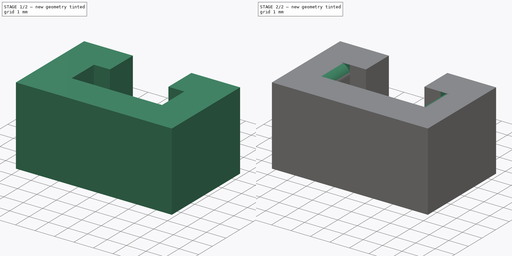
[diagram: build sequence overview — one tinted view per stage of 2, left to right]
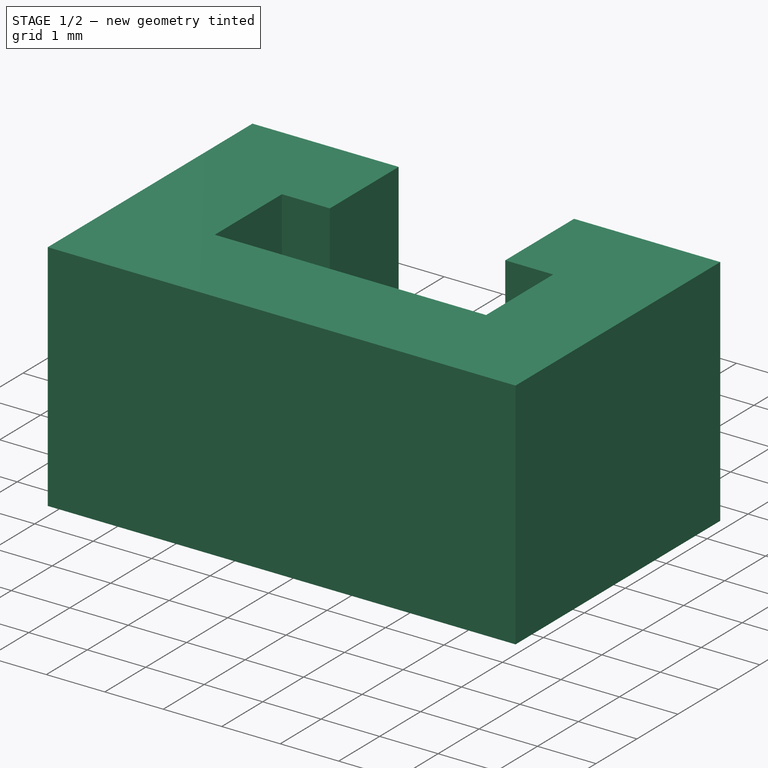
[diagram: stage 1 of 2 — iso view after this stage's code; geometry added in this stage tinted green]
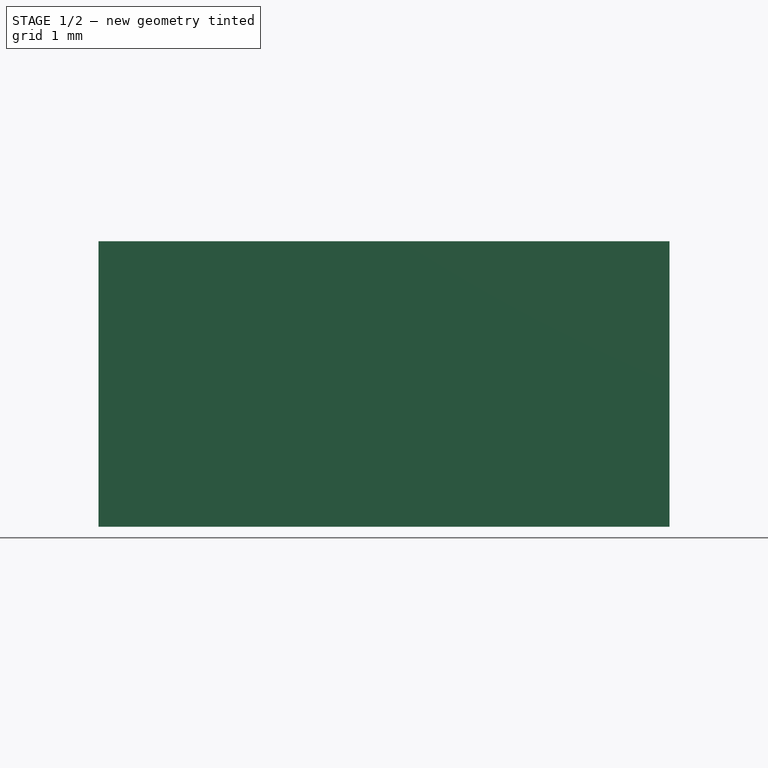
[diagram: stage 1 of 2 — front view after this stage's code; geometry added in this stage tinted green]
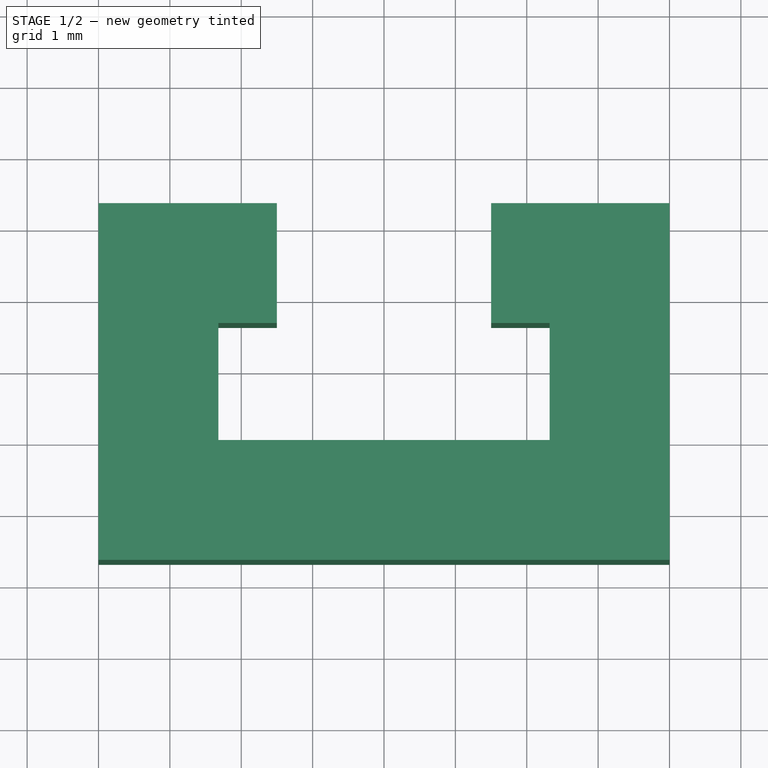
[diagram: stage 1 of 2 — top view after this stage's code; geometry added in this stage tinted green]
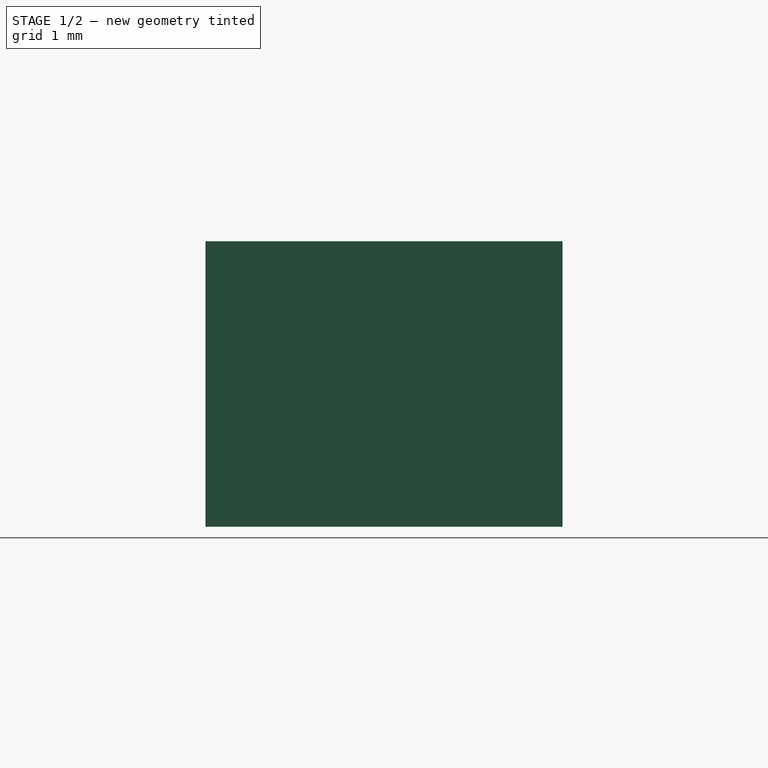
[diagram: stage 1 of 2 — right view after this stage's code; geometry added in this stage tinted green]
FCSTD DOCUMENT  (FreeCAD 1.0R39109 (Git))
Label: Rubber-Band-Clip
License: All rights reserved
LicenseURL: https://en.wikipedia.org/wiki/All_rights_reserved
objects: Sketcher::SketchObject×1, App::VarSet×1, PartDesign::Pad×1, PartDesign::Fillet×1, PartDesign::Body×1
note: 9 computed .brp shape members not serialized (recipe doc carries the construction recipe); baked Part::Feature solids carry a one-line shape summary decoded from their .brp

FEATURE [Sketcher::SketchObject] Sketch
  ArcFitTolerance = 1e-06
  AttachmentSupport = -> [XY_Plane]
  FullyConstrained = true
  MakeInternals = false
  MapMode = 5
  expr: Constraints[26] = VarSet.Base_Thickness
  expr: Constraints[29] = VarSet.Base_Thickness
  expr: Constraints[30] = VarSet.Base_Thickness
  expr: Constraints[31] = VarSet.Base_Thickness
  sketch-geometry (12):
    g0: LineSegment StartX=-2.32 StartY=0 StartZ=0 EndX=2.32 EndY=0 EndZ=0
    g1: LineSegment StartX=2.32 StartY=0 StartZ=0 EndX=2.32 EndY=1.64 EndZ=0
    g2: LineSegment StartX=-2.32 StartY=0 StartZ=0 EndX=-2.32 EndY=1.64 EndZ=0
    g3: LineSegment StartX=-2.32 StartY=1.64 StartZ=0 EndX=-1.5 EndY=1.64 EndZ=0
    g4: LineSegment StartX=2.32 StartY=1.64 StartZ=0 EndX=1.5 EndY=1.64 EndZ=0
    g5: LineSegment StartX=-1.5 StartY=1.64 StartZ=0 EndX=-1.5 EndY=3.32 EndZ=0
    g6: LineSegment StartX=-1.5 StartY=3.32 StartZ=0 EndX=-4 EndY=3.32 EndZ=0
    g7: LineSegment StartX=-4 StartY=3.32 StartZ=0 EndX=-4 EndY=-1.68 EndZ=0
    g8: LineSegment StartX=-4 StartY=-1.68 StartZ=0 EndX=4 EndY=-1.68 EndZ=0
    g9: LineSegment StartX=4 StartY=-1.68 StartZ=0 EndX=4 EndY=3.32 EndZ=0
    g10: LineSegment StartX=4 StartY=3.32 StartZ=0 EndX=1.5 EndY=3.32 EndZ=0
    g11: LineSegment StartX=1.5 StartY=3.32 StartZ=0 EndX=1.5 EndY=1.64 EndZ=0
  constraints (35):
    c: PointOnObject(g0,g-1)
    c: PointOnObject(g0,g-1)
    c: Coincident(g1,g0)
    c: Vertical(g1)
    c: Coincident(g2,g0)
    c: Vertical(g2)
    c: Equal(g2,g1)
    c: Coincident(g3,g2)
    c: Horizontal(g3)
    c: Coincident(g4,g1)
    c: Horizontal(g4)
    c: Equal(g4,g3)
    c: Coincident(g5,g3)
    c: Vertical(g5)
    c: Coincident(g6,g5)
    c: Horizontal(g6)
    c: Coincident(g7,g6)
    c: Vertical(g7)
    c: Coincident(g8,g7)
    c: Coincident(g9,g8)
    c: Vertical(g9)
    c: Coincident(g10,g9)
    c: Horizontal(g10)
    c: Coincident(g11,g10)
    c: Coincident(g11,g4)
    c: Vertical(g11)
    c: Distance(g9,g1) = 1.68
    c: Symmetric(g8,g7,g-2)
    c: DistanceX(g8,g8) = 8
    c: Distance(g8,g0) = 1.68
    c: Distance(g7,g2) = 1.68
    c: DistanceY(g5,g5) = 1.68
    c: Equal(g7,g9)
    c: Distance(g9,g9) = 5
    c: Distance(g10,g5) = 3
FEATURE [App::VarSet] VarSet
  Base_Thickness = 1.68
FEATURE [PartDesign::Pad] Pad
  Direction = (0,0,1)
  Length = 4
  Length2 = 10
  Profile = -> Sketch
  ReferenceAxis = -> Sketch [N_Axis]
  Refine = true
  Suppressed = false
  Type = 0
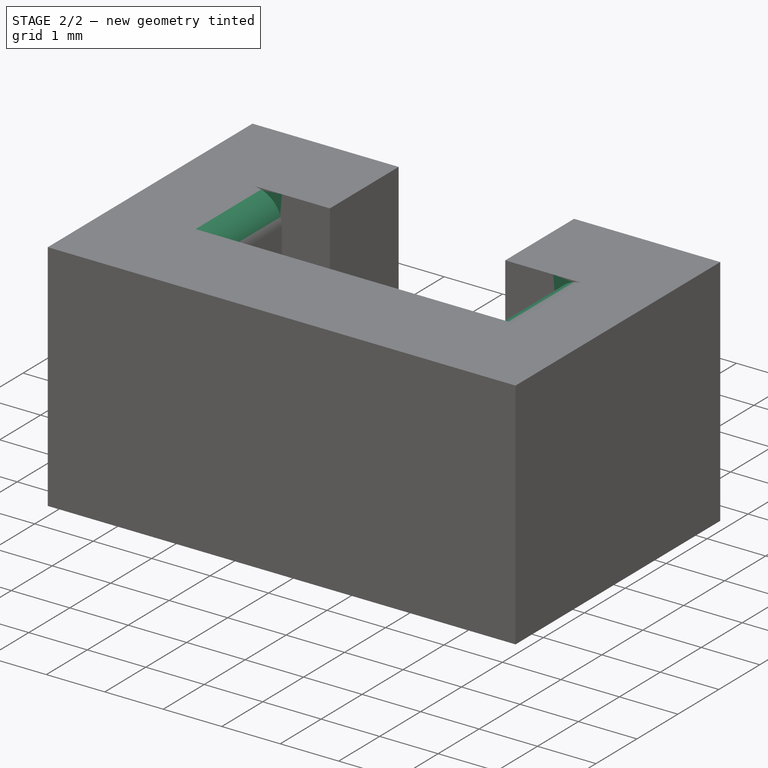
[diagram: stage 2 of 2 — iso view after this stage's code; geometry added in this stage tinted green]
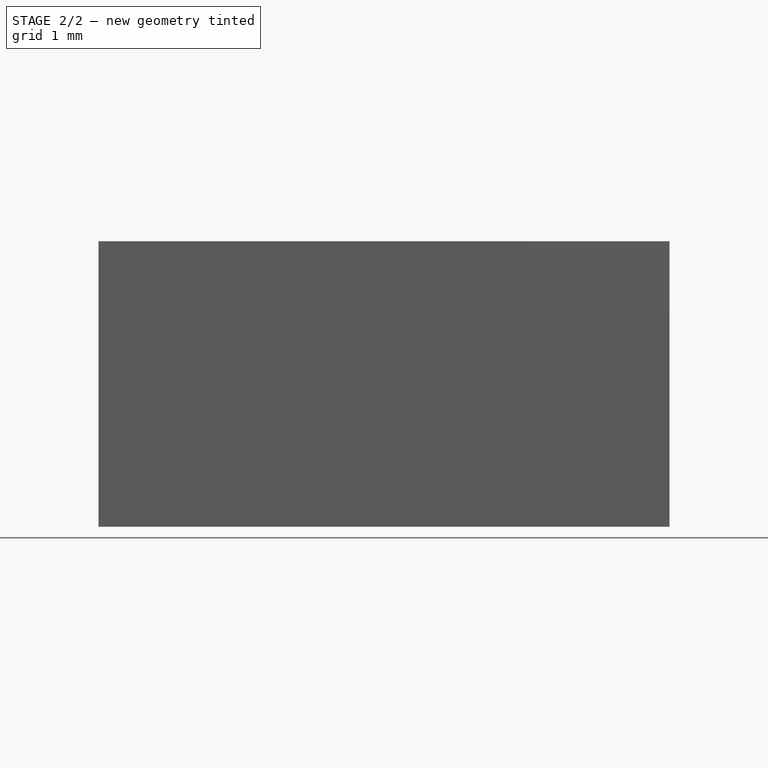
[diagram: stage 2 of 2 — front view after this stage's code; geometry added in this stage tinted green]
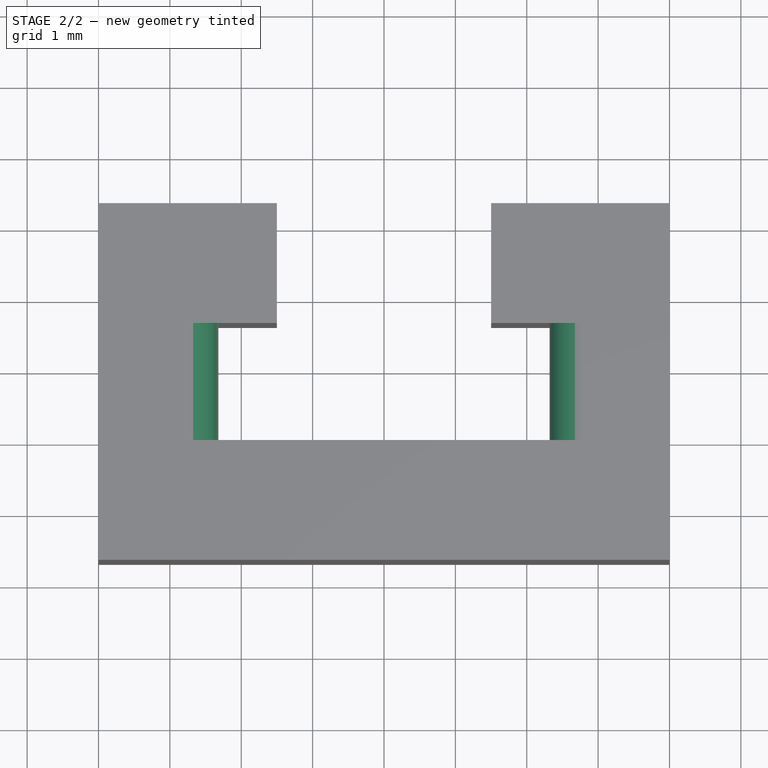
[diagram: stage 2 of 2 — top view after this stage's code; geometry added in this stage tinted green]
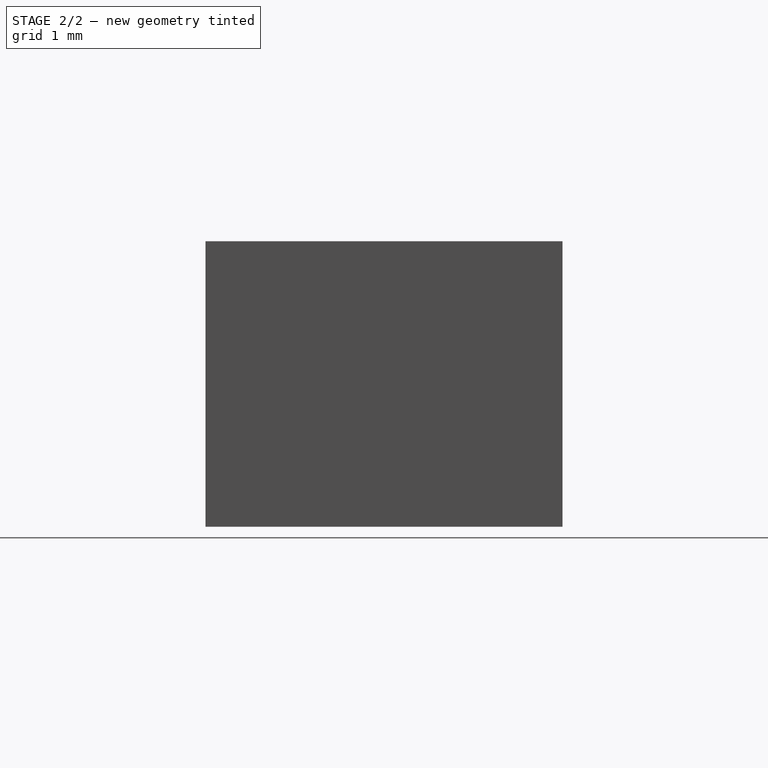
[diagram: stage 2 of 2 — right view after this stage's code; geometry added in this stage tinted green]
FEATURE [PartDesign::Fillet] Fillet
  Base = -> Pad [Edge7,Edge36,Edge6,Edge35]
  BaseFeature = -> Pad
  Radius = 0.5
  Refine = true
  SupportTransform = false
  Suppressed = false
  UseAllEdges = false
FEATURE [PartDesign::Body] Body
  AllowCompound = false
  Group = -> [Sketch,VarSet,Pad,Fillet]
  Origin = -> Origin
  Tip = -> Fillet
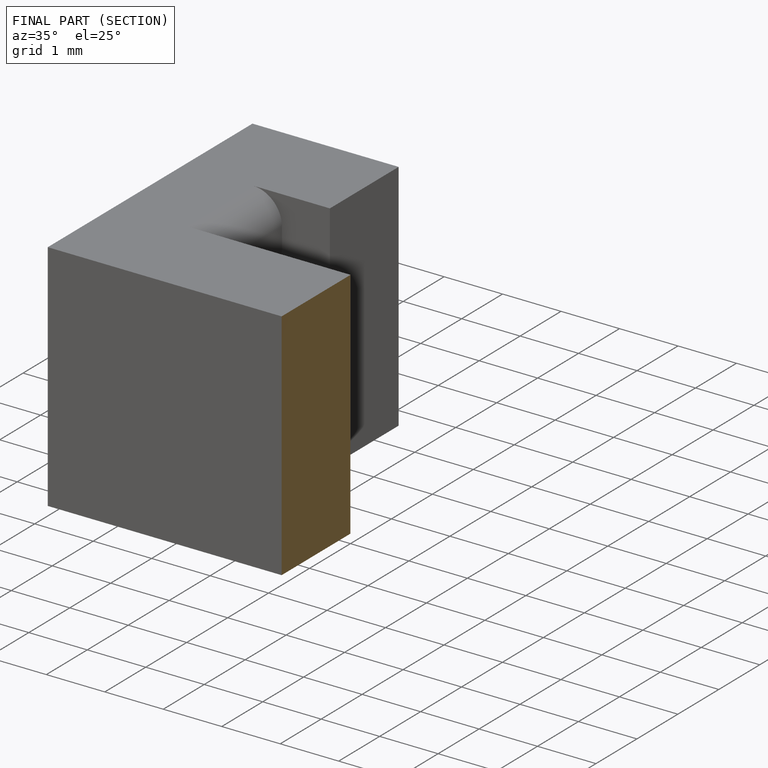
[diagram: finished part — half-section view (interior)]
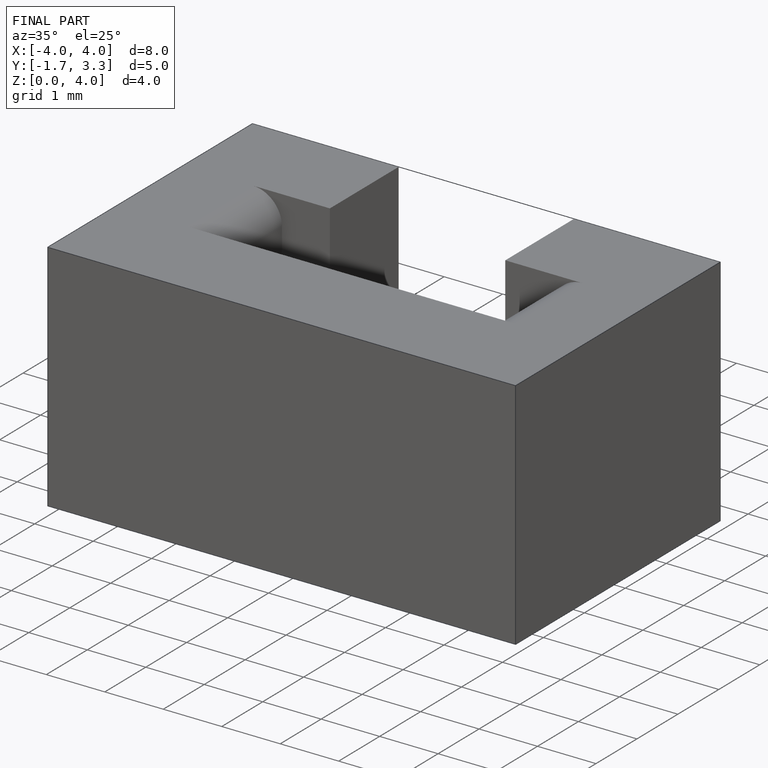
[diagram: finished part — iso view with bounding-box wireframe]
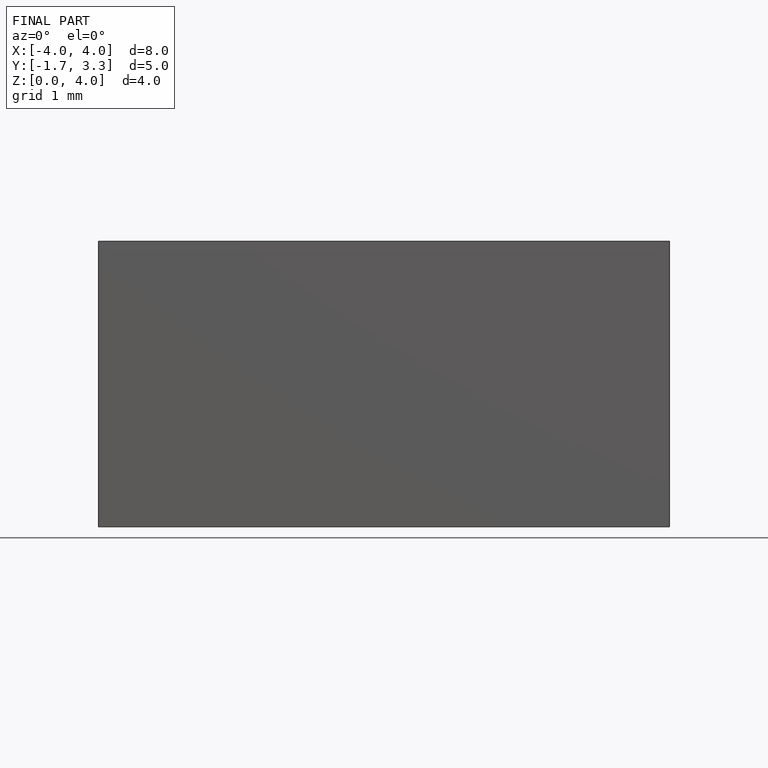
[diagram: finished part — front view with bounding-box wireframe]
